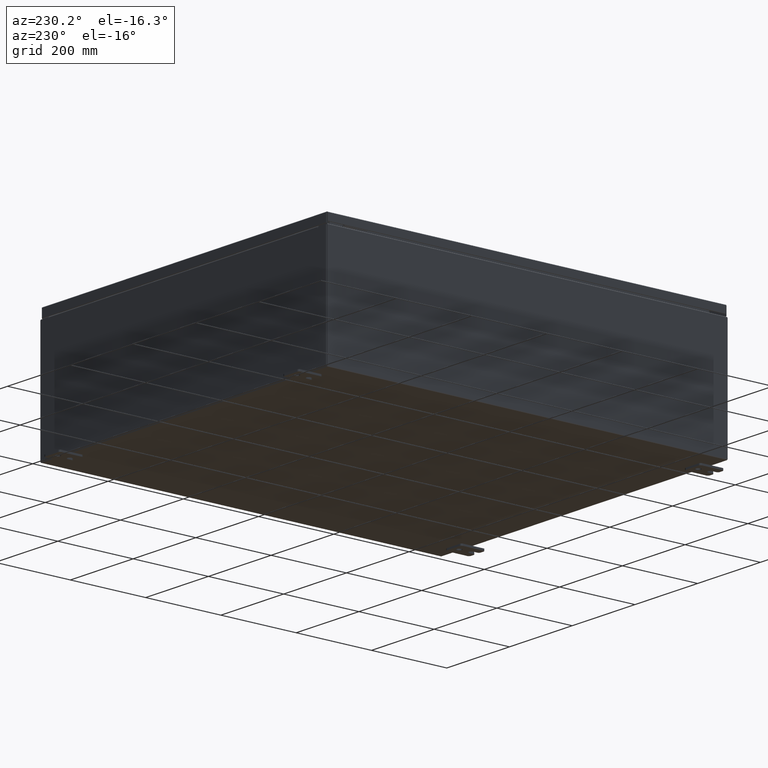
[diagram: clean part render]
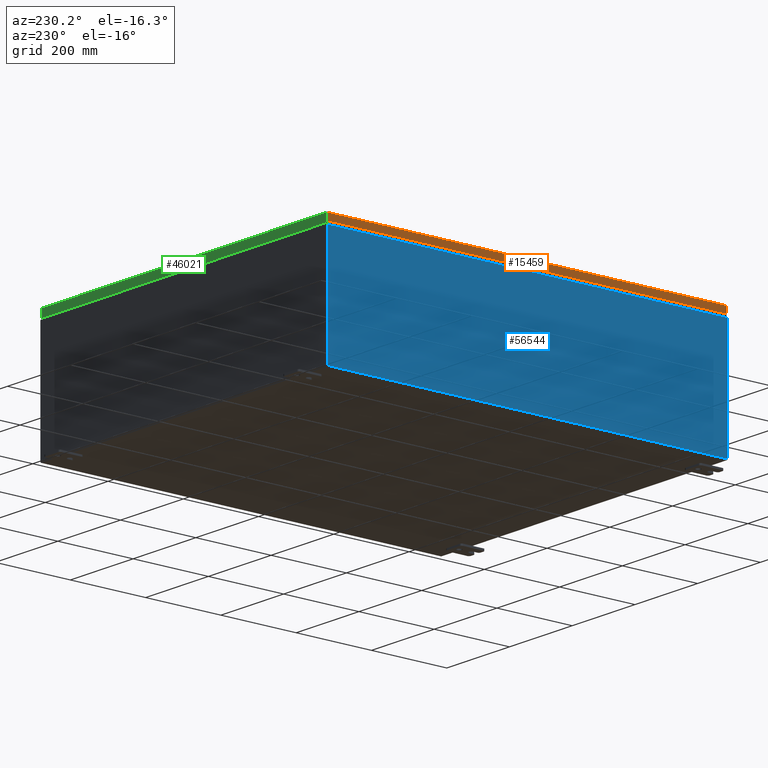
[diagram: same view with three faces highlighted in distinct colors, each labeled with its STEP entity id]
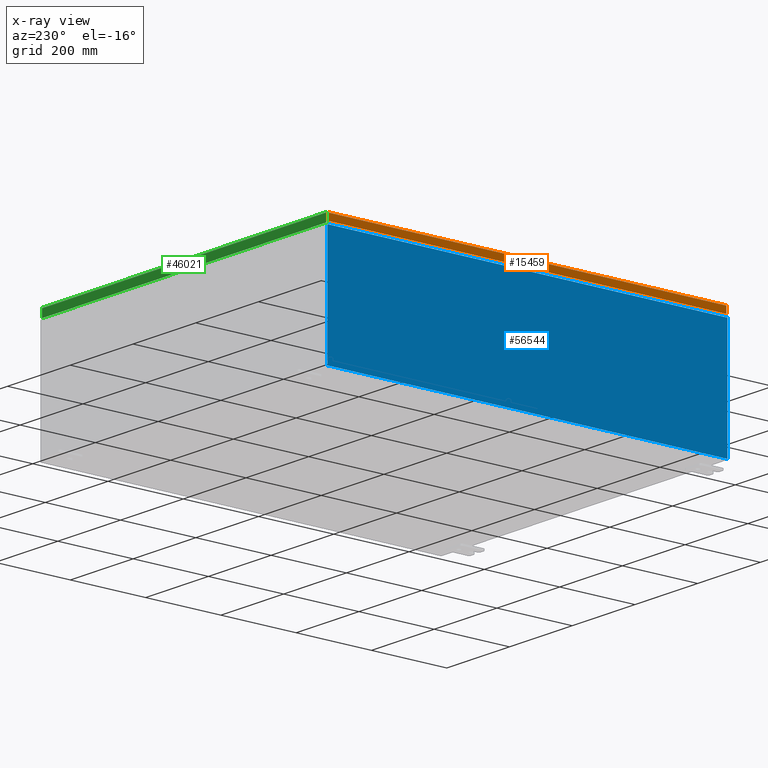
[diagram: x-ray of the same camera — body ghosted, the three highlighted faces saturated]
A machine part, auxiliary view with three faces highlighted in distinct colors.
The next image is the same camera in x-ray (body ghosted, the three faces saturated) — at least one of them is partly hidden behind the body in this view.
Their STEP definitions:

[orange] entity #15459 — the highlighted planar face has unit normal (1, -0, -0).
#559 = VERTEX_POINT ( 'NONE', #1733 ) ;
#1307 = VECTOR ( 'NONE', #28599, 39.37007874015748100 ) ;
#1733 = CARTESIAN_POINT ( 'NONE',  ( -17.93750000000000000, 20.84865786437626800, -0.08770000000000659200 ) ) ;
#2608 = EDGE_CURVE ( 'NONE', #65674, #23791, #55983, .T. ) ;
#4287 = CARTESIAN_POINT ( 'NONE',  ( -17.93750000000000700, -20.84865786437626800, -0.7949999999999996000 ) ) ;
#4640 = CARTESIAN_POINT ( 'NONE',  ( -17.93750000000000400, -20.84865786437626800, -0.08770000000000334500 ) ) ;
#5007 = CARTESIAN_POINT ( 'NONE',  ( -17.93750000000000000, 1.872335221926305700E-015, 5.468538495836085700E-014 ) ) ;
#10518 = EDGE_LOOP ( 'NONE', ( #40005, #15864, #67237, #28282 ) ) ;
#14880 = LINE ( 'NONE', #29767, #41373 ) ;
#15459 = ADVANCED_FACE ( 'NONE', ( #65577 ), #52650, .F. ) ;
#15864 = ORIENTED_EDGE ( 'NONE', *, *, #39225, .T. ) ;
#17647 = VECTOR ( 'NONE', #55863, 39.37007874015748100 ) ;
#23298 = CARTESIAN_POINT ( 'NONE',  ( -17.93750000000000400, -20.84865786437627100, -0.07469999999999976700 ) ) ;
#23791 = VERTEX_POINT ( 'NONE', #4287 ) ;
#25585 = VERTEX_POINT ( 'NONE', #67468 ) ;
#28282 = ORIENTED_EDGE ( 'NONE', *, *, #2608, .F. ) ;
#28599 = DIRECTION ( 'NONE',  ( -3.034122441942816100E-015, 6.982962677686267500E-015, -1.000000000000000000 ) ) ;
#29767 = CARTESIAN_POINT ( 'NONE',  ( -17.93750000000000400, -20.93750000000000000, -0.08770000000000004200 ) ) ;
#36185 = CARTESIAN_POINT ( 'NONE',  ( -17.93750000000000000, 20.84865786437627100, 2.002707847051506500E-013 ) ) ;
#36921 = DIRECTION ( 'NONE',  ( -3.034122441942816500E-015, 0.0000000000000000000, -1.000000000000000000 ) ) ;
#36997 = VECTOR ( 'NONE', #46819, 39.37007874015748100 ) ;
#39225 = EDGE_CURVE ( 'NONE', #559, #25585, #63559, .T. ) ;
#40005 = ORIENTED_EDGE ( 'NONE', *, *, #45293, .F. ) ;
#40407 = DIRECTION ( 'NONE',  ( -1.043810576683650200E-016, -1.000000000000000000, 1.565715865025488000E-016 ) ) ;
#41373 = VECTOR ( 'NONE', #40407, 39.37007874015748100 ) ;
#45293 = EDGE_CURVE ( 'NONE', #559, #65674, #14880, .T. ) ;
#46819 = DIRECTION ( 'NONE',  ( -3.034122441942816100E-015, 6.982962677686267500E-015, -1.000000000000000000 ) ) ;
#47435 = LINE ( 'NONE', #66575, #17647 ) ;
#52650 = PLANE ( 'NONE',  #67387 ) ;
#55863 = DIRECTION ( 'NONE',  ( 1.043810576683658800E-016, 1.000000000000000000, 1.239525059811844700E-016 ) ) ;
#55983 = LINE ( 'NONE', #23298, #1307 ) ;
#62395 = EDGE_CURVE ( 'NONE', #23791, #25585, #47435, .T. ) ;
#63559 = LINE ( 'NONE', #36185, #36997 ) ;
#65577 = FACE_OUTER_BOUND ( 'NONE', #10518, .T. ) ;
#65674 = VERTEX_POINT ( 'NONE', #4640 ) ;
#66575 = CARTESIAN_POINT ( 'NONE',  ( -17.93750000000000700, -20.93750000000000000, -0.7949999999999997100 ) ) ;
#67237 = ORIENTED_EDGE ( 'NONE', *, *, #62395, .F. ) ;
#67387 = AXIS2_PLACEMENT_3D ( 'NONE', #5007, #68715, #36921 ) ;
#67468 = CARTESIAN_POINT ( 'NONE',  ( -17.93750000000000000, 20.84865786437627800, -0.7949999999999944900 ) ) ;
#68715 = DIRECTION ( 'NONE',  ( 1.000000000000000000, -1.043810576683654900E-016, -3.034122441942816500E-015 ) ) ;

[blue] entity #56544 — the highlighted planar face has unit normal (1, 0, 0).
#63 = EDGE_CURVE ( 'NONE', #59898, #28596, #61998, .T. ) ;
#787 = ORIENTED_EDGE ( 'NONE', *, *, #63, .T. ) ;
#1328 = VERTEX_POINT ( 'NONE', #61817 ) ;
#3991 = CARTESIAN_POINT ( 'NONE',  ( -17.99999999999999600, -20.92530000000000400, -6.293710784286996200E-014 ) ) ;
#6664 = VECTOR ( 'NONE', #25077, 39.37007874015748100 ) ;
#7143 = VECTOR ( 'NONE', #53598, 39.37007874015748100 ) ;
#7322 = VECTOR ( 'NONE', #49412, 39.37007874015748100 ) ;
#9909 = PLANE ( 'NONE',  #12440 ) ;
#11131 = LINE ( 'NONE', #18194, #20235 ) ;
#12440 = AXIS2_PLACEMENT_3D ( 'NONE', #41601, #31199, #68289 ) ;
#18194 = CARTESIAN_POINT ( 'NONE',  ( -17.99999999999999600, 20.92529999999999600, 0.01299999999999984700 ) ) ;
#20235 = VECTOR ( 'NONE', #39249, 39.37007874015748100 ) ;
#21224 = LINE ( 'NONE', #32319, #7143 ) ;
#25077 = DIRECTION ( 'NONE',  ( -3.482016343714355500E-015, 0.0000000000000000000, 1.000000000000000000 ) ) ;
#25199 = EDGE_LOOP ( 'NONE', ( #37430, #787, #58724, #59052 ) ) ;
#26839 = CARTESIAN_POINT ( 'NONE',  ( -17.99999999999999600, 20.92529999999999600, 0.01299999999999984700 ) ) ;
#27374 = CARTESIAN_POINT ( 'NONE',  ( -17.99999999999999600, -20.92529999999999300, 0.01299999999999984700 ) ) ;
#28004 = FACE_OUTER_BOUND ( 'NONE', #25199, .T. ) ;
#28596 = VERTEX_POINT ( 'NONE', #26839 ) ;
#31199 = DIRECTION ( 'NONE',  ( 1.000000000000000000, 0.0000000000000000000, 3.482016343714355100E-015 ) ) ;
#32319 = CARTESIAN_POINT ( 'NONE',  ( -18.00000000000003900, -20.92529999999999600, 11.83760000000000000 ) ) ;
#34495 = CARTESIAN_POINT ( 'NONE',  ( -18.00000000000003900, 20.92529999999999600, 11.83760000000000000 ) ) ;
#35590 = CARTESIAN_POINT ( 'NONE',  ( -17.99999999999999600, 20.92529999999999600, -6.293710784286996200E-014 ) ) ;
#37430 = ORIENTED_EDGE ( 'NONE', *, *, #49847, .T. ) ;
#39249 = DIRECTION ( 'NONE',  ( -0.0000000000000000000, 1.000000000000000000, -0.0000000000000000000 ) ) ;
#41601 = CARTESIAN_POINT ( 'NONE',  ( -17.99999999999999600, 0.0000000000000000000, -6.293710784286996200E-014 ) ) ;
#44596 = EDGE_CURVE ( 'NONE', #48893, #1328, #63010, .T. ) ;
#48893 = VERTEX_POINT ( 'NONE', #27374 ) ;
#49412 = DIRECTION ( 'NONE',  ( 3.482016343714355500E-015, 0.0000000000000000000, -1.000000000000000000 ) ) ;
#49847 = EDGE_CURVE ( 'NONE', #1328, #59898, #21224, .T. ) ;
#53512 = EDGE_CURVE ( 'NONE', #48893, #28596, #11131, .T. ) ;
#53598 = DIRECTION ( 'NONE',  ( 0.0000000000000000000, 1.000000000000000000, 0.0000000000000000000 ) ) ;
#56544 = ADVANCED_FACE ( 'NONE', ( #28004 ), #9909, .F. ) ;
#58724 = ORIENTED_EDGE ( 'NONE', *, *, #53512, .F. ) ;
#59052 = ORIENTED_EDGE ( 'NONE', *, *, #44596, .T. ) ;
#59898 = VERTEX_POINT ( 'NONE', #34495 ) ;
#61817 = CARTESIAN_POINT ( 'NONE',  ( -18.00000000000003900, -20.92529999999999300, 11.83760000000000000 ) ) ;
#61998 = LINE ( 'NONE', #35590, #7322 ) ;
#63010 = LINE ( 'NONE', #3991, #6664 ) ;
#68289 = DIRECTION ( 'NONE',  ( 3.482016343714355100E-015, 0.0000000000000000000, -1.000000000000000000 ) ) ;

[green] entity #46021 — the highlighted planar face has unit normal (0, -1, -0).
#144 = VERTEX_POINT ( 'NONE', #35283 ) ;
#4042 = VECTOR ( 'NONE', #51677, 39.37007874015748100 ) ;
#4534 = VERTEX_POINT ( 'NONE', #34632 ) ;
#5137 = DIRECTION ( 'NONE',  ( 0.0000000000000000000, 5.064839849203706200E-015, -1.000000000000000000 ) ) ;
#5812 = EDGE_CURVE ( 'NONE', #144, #48214, #61996, .T. ) ;
#7085 = VECTOR ( 'NONE', #15230, 39.37007874015748100 ) ;
#10102 = ORIENTED_EDGE ( 'NONE', *, *, #25882, .T. ) ;
#10714 = AXIS2_PLACEMENT_3D ( 'NONE', #31520, #36826, #5137 ) ;
#15230 = DIRECTION ( 'NONE',  ( -1.000000000000000000, -6.170925750089125200E-031, -3.189293793798670500E-045 ) ) ;
#16456 = LINE ( 'NONE', #41039, #4042 ) ;
#18090 = ORIENTED_EDGE ( 'NONE', *, *, #18548, .F. ) ;
#18548 = EDGE_CURVE ( 'NONE', #48214, #4534, #16456, .T. ) ;
#21044 = CARTESIAN_POINT ( 'NONE',  ( -17.93750000000000000, 20.93750000000000000, -0.08769999999999550400 ) ) ;
#25882 = EDGE_CURVE ( 'NONE', #60052, #4534, #60017, .T. ) ;
#31520 = CARTESIAN_POINT ( 'NONE',  ( -1.292037578924910300E-029, 20.93750000000000000, 1.063058979987141900E-013 ) ) ;
#33788 = VECTOR ( 'NONE', #36000, 39.37007874015748100 ) ;
#34632 = CARTESIAN_POINT ( 'NONE',  ( 17.84865786437626800, 20.93750000000000700, -0.9376999999999997600 ) ) ;
#35283 = CARTESIAN_POINT ( 'NONE',  ( -17.84865786437627100, 20.93750000000000000, -0.08769999999999550400 ) ) ;
#36000 = DIRECTION ( 'NONE',  ( -0.0000000000000000000, 5.064839849203706200E-015, -1.000000000000000000 ) ) ;
#36826 = DIRECTION ( 'NONE',  ( 6.170925750089124300E-031, -1.000000000000000000, -5.064839849203706200E-015 ) ) ;
#38226 = DIRECTION ( 'NONE',  ( 0.0000000000000000000, 5.064839849203706200E-015, -1.000000000000000000 ) ) ;
#41039 = CARTESIAN_POINT ( 'NONE',  ( -17.93750000000000000, 20.93750000000000700, -0.9377000000000042000 ) ) ;
#41229 = EDGE_CURVE ( 'NONE', #60052, #144, #47614, .T. ) ;
#42234 = CARTESIAN_POINT ( 'NONE',  ( -17.84865786437626800, 20.93750000000000700, -0.9377000000000042000 ) ) ;
#46021 = ADVANCED_FACE ( 'NONE', ( #60405 ), #68391, .F. ) ;
#47614 = LINE ( 'NONE', #21044, #7085 ) ;
#48214 = VERTEX_POINT ( 'NONE', #42234 ) ;
#48829 = ORIENTED_EDGE ( 'NONE', *, *, #5812, .F. ) ;
#49907 = ORIENTED_EDGE ( 'NONE', *, *, #41229, .F. ) ;
#51405 = EDGE_LOOP ( 'NONE', ( #49907, #10102, #18090, #48829 ) ) ;
#51677 = DIRECTION ( 'NONE',  ( 1.000000000000000000, 1.751623080406021300E-046, 1.218385167906012900E-016 ) ) ;
#54191 = CARTESIAN_POINT ( 'NONE',  ( 17.84865786437626400, 20.93750000000000000, 1.063058979987141900E-013 ) ) ;
#55010 = VECTOR ( 'NONE', #38226, 39.37007874015748100 ) ;
#57169 = CARTESIAN_POINT ( 'NONE',  ( 17.84865786437626800, 20.93750000000000000, -0.08769999999999550400 ) ) ;
#60017 = LINE ( 'NONE', #54191, #55010 ) ;
#60052 = VERTEX_POINT ( 'NONE', #57169 ) ;
#60405 = FACE_OUTER_BOUND ( 'NONE', #51405, .T. ) ;
#61996 = LINE ( 'NONE', #62440, #33788 ) ;
#62440 = CARTESIAN_POINT ( 'NONE',  ( -17.84865786437626800, 20.93750000000000000, -0.07469999999999962800 ) ) ;
#68391 = PLANE ( 'NONE',  #10714 ) ;